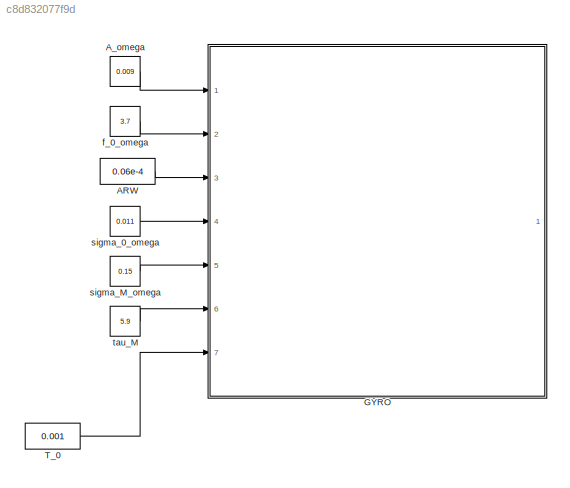
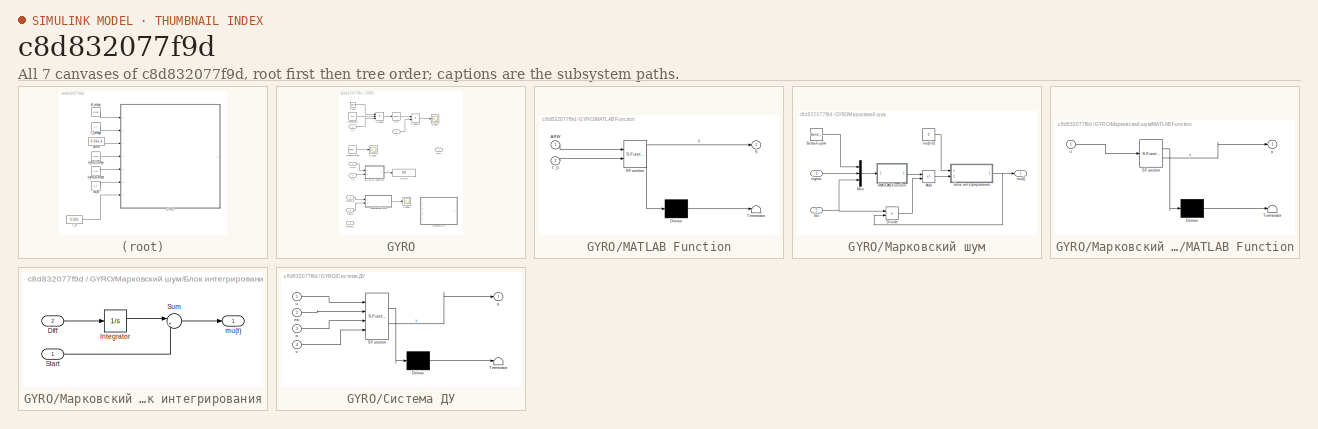
[diagram: thumbnail index - all 7 canvases of the model, root first then tree order]
MODEL slx_c8d832077f9d
KIND model
CONFIG AbsTol = auto
CONFIG EnableMultiTasking = off
CONFIG FixedStep = 0.001
CONFIG MaxStep = auto
CONFIG MinStep = auto
CONFIG RelTol = 1e-3
CONFIG SampleTimeConstraint = Unconstrained
CONFIG SolverName = FixedStepAuto
CONFIG StartTime = 0.0
CONFIG StopTime = 100.0
WORKSPACE source: mxarray member
WORKSPACE Sig: Simulink.Signal (value not decoded)
BLOCK [Constant] ARW
  Value = 0.06e-4
BLOCK [Constant] A_omega
  Value = 0.009
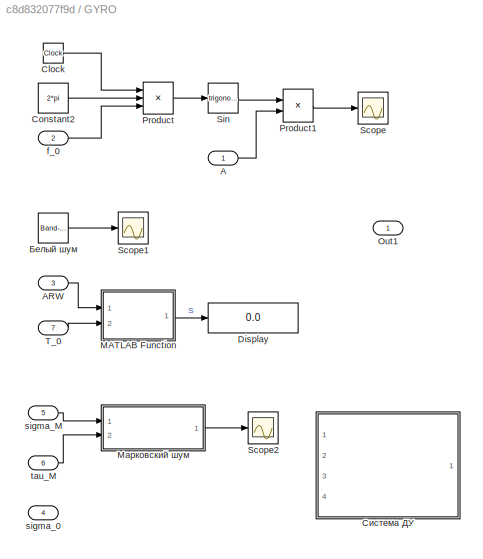
BLOCK [SubSystem] GYRO
  Ports = [7, 1]
  RequestExecContextInheritance = off
BLOCK [Inport] GYRO/A
BLOCK [Inport] GYRO/ARW
  Port = 3
BLOCK [Clock] GYRO/Clock
BLOCK [Constant] GYRO/Constant2
  Value = 2*pi
BLOCK [Display] GYRO/Display
  Decimation = 1
  Ports = [1]
BLOCK [SubSystem] GYRO/MATLAB Function
  ErrorFcn = Stateflow.Translate.translate
  PermitHierarchicalResolution = ExplicitOnly
  Ports = [2, 1]
  RequestExecContextInheritance = off
  SFBlockType = MATLAB Function
  TreatAsAtomicUnit = on
BLOCK [Demux] GYRO/MATLAB Function/ Demux 
  Outputs = 1
  Ports = [1, 1]
BLOCK [S-Function] GYRO/MATLAB Function/ SFunction 
  EnableBusSupport = on
  FunctionName = sf_sfun
  PortCounts = [2 2]
  Ports = [2, 2]
  SFcnIsStateOwnerBlock = off
  SFunctionDeploymentMode = off
  Tag = Stateflow S-Function 2
BLOCK [Terminator] GYRO/MATLAB Function/ Terminator 
BLOCK [Inport] GYRO/MATLAB Function/ARW
BLOCK [Outport] GYRO/MATLAB Function/S
BLOCK [Inport] GYRO/MATLAB Function/T_0
  Port = 2
BLOCK [Outport] GYRO/Out1
BLOCK [Product] GYRO/Product
  Inputs = 3
  Ports = [3, 1]
BLOCK [Product] GYRO/Product1
  Ports = [2, 1]
BLOCK [Scope] GYRO/Scope
  Floating = off
  NumInputPorts = 1
  Ports = [1]
  ScopeSpecificationString = Simulink.scopes.TimeScopeBlockCfg('CurrentConfiguration', extmgr.ConfigurationSet(extmgr.Configuration('Core','General UI',true),extmgr.Configuration('Core','Source UI',true),extmgr.Configuration('Sources','WiredSimulink',true,'DataLoggingVariableName','ScopeData1'),extmgr.Configuration('Visuals','Time Domain',true,'SerializedDisplays',{struct('MinYLimReal','-0.01125','MaxYLimReal','0.01125','YLab...<+1544ch>
BLOCK [Scope] GYRO/Scope1
  Floating = off
  NumInputPorts = 1
  Ports = [1]
  ScopeSpecificationString = Simulink.scopes.TimeScopeBlockCfg('CurrentConfiguration', extmgr.ConfigurationSet(extmgr.Configuration('Core','General UI',true),extmgr.Configuration('Core','Source UI',true),extmgr.Configuration('Sources','WiredSimulink',true),extmgr.Configuration('Visuals','Time Domain',true,'SerializedDisplays',{struct('MinYLimReal','-0.00009','MaxYLimReal','0.00009','YLabelReal','','MinYLimMag','0.00000','MaxY...<+1506ch>
BLOCK [Scope] GYRO/Scope2
  Floating = off
  NumInputPorts = 1
  Ports = [1]
  ScopeSpecificationString = Simulink.scopes.TimeScopeBlockCfg('CurrentConfiguration', extmgr.ConfigurationSet(extmgr.Configuration('Core','General UI',true),extmgr.Configuration('Core','Source UI',true),extmgr.Configuration('Sources','WiredSimulink',true,'DataLoggingVariableName','ScopeData2'),extmgr.Configuration('Visuals','Time Domain',true,'SerializedDisplays',{struct('MinYLimReal','-0.01336','MaxYLimReal','0.00978','YLab...<+1550ch>
BLOCK [Trigonometry] GYRO/Sin
  Ports = [1, 1]
BLOCK [Inport] GYRO/T_0
  Port = 7
BLOCK [Inport] GYRO/f_0
  Port = 2
BLOCK [Inport] GYRO/sigma_0
  Port = 4
BLOCK [Inport] GYRO/sigma_M
  Port = 5
BLOCK [Inport] GYRO/tau_M
  Port = 6
BLOCK [Reference] GYRO/Белый шум  REF=simulink/Sources/Band-Limited
White Noise
  Ports = [0, 1]
  SourceBlock = simulink/Sources/Band-Limited\nWhite Noise
  SourceProductBaseCode = SL
  SourceType = Band-Limited White Noise.
BLOCK [SubSystem] GYRO/Марковский шум
  Ports = [2, 1]
  RequestExecContextInheritance = off
BLOCK [Sum] GYRO/Марковский шум/Add
  IconShape = rectangular
  Inputs = +-
  Ports = [2, 1]
BLOCK [Product] GYRO/Марковский шум/Divide
  Inputs = /*
  Ports = [2, 1]
BLOCK [SubSystem] GYRO/Марковский шум/MATLAB Function
  ErrorFcn = Stateflow.Translate.translate
  PermitHierarchicalResolution = ExplicitOnly
  Ports = [1, 1]
  RequestExecContextInheritance = off
  SFBlockType = MATLAB Function
  TreatAsAtomicUnit = on
BLOCK [Demux] GYRO/Марковский шум/MATLAB Function/ Demux 
  Outputs = 1
  Ports = [1, 1]
BLOCK [S-Function] GYRO/Марковский шум/MATLAB Function/ SFunction 
  EnableBusSupport = on
  FunctionName = sf_sfun
  PortCounts = [1 2]
  Ports = [1, 2]
  SFcnIsStateOwnerBlock = off
  SFunctionDeploymentMode = off
  Tag = Stateflow S-Function 3
BLOCK [Terminator] GYRO/Марковский шум/MATLAB Function/ Terminator 
BLOCK [Inport] GYRO/Марковский шум/MATLAB Function/u
BLOCK [Outport] GYRO/Марковский шум/MATLAB Function/y
BLOCK [Mux] GYRO/Марковский шум/Mux
  DisplayOption = bar
  Inputs = 3
  Ports = [3, 1]
BLOCK [Outport] GYRO/Марковский шум/mu(t)
BLOCK [Constant] GYRO/Марковский шум/mu(t=0)
  Value = 0
BLOCK [Inport] GYRO/Марковский шум/sigma
BLOCK [Inport] GYRO/Марковский шум/tau
  Port = 2
BLOCK [Reference] GYRO/Марковский шум/Белый шум  REF=simulink/Sources/Band-Limited
White Noise
  Ports = [0, 1]
  SourceBlock = simulink/Sources/Band-Limited\nWhite Noise
  SourceProductBaseCode = SL
  SourceType = Band-Limited White Noise.
BLOCK [SubSystem] GYRO/Марковский шум/Блок интегрирования
  Ports = [2, 1]
  RequestExecContextInheritance = off
BLOCK [Inport] GYRO/Марковский шум/Блок интегрирования/Diff
  Port = 2
BLOCK [Integrator] GYRO/Марковский шум/Блок интегрирования/Integrator
  Ports = [1, 1]
BLOCK [Inport] GYRO/Марковский шум/Блок интегрирования/Start
BLOCK [Sum] GYRO/Марковский шум/Блок интегрирования/Sum
  Inputs = |++
  Ports = [2, 1]
BLOCK [Outport] GYRO/Марковский шум/Блок интегрирования/mu(t)
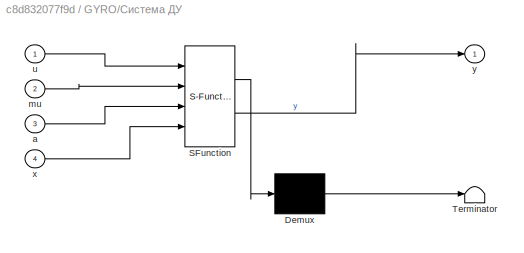
BLOCK [SubSystem] GYRO/Система ДУ
  Commented = on
  ErrorFcn = Stateflow.Translate.translate
  PermitHierarchicalResolution = ExplicitOnly
  Ports = [4, 1]
  RequestExecContextInheritance = off
  SFBlockType = MATLAB Function
  TreatAsAtomicUnit = on
BLOCK [Demux] GYRO/Система ДУ/ Demux 
  Outputs = 1
  Ports = [1, 1]
BLOCK [S-Function] GYRO/Система ДУ/ SFunction 
  EnableBusSupport = on
  FunctionName = sf_sfun
  PortCounts = [4 2]
  Ports = [4, 2]
  SFcnIsStateOwnerBlock = off
  SFunctionDeploymentMode = off
  Tag = Stateflow S-Function 1
BLOCK [Terminator] GYRO/Система ДУ/ Terminator 
BLOCK [Inport] GYRO/Система ДУ/a
  Port = 3
BLOCK [Inport] GYRO/Система ДУ/mu
  Port = 2
BLOCK [Inport] GYRO/Система ДУ/u
BLOCK [Inport] GYRO/Система ДУ/x
  Port = 4
BLOCK [Outport] GYRO/Система ДУ/y
BLOCK [Constant] T_0
  Value = 0.001
BLOCK [Constant] f_0_omega
  Value = 3.7
BLOCK [Constant] sigma_0_omega
  Value = 0.011
BLOCK [Constant] sigma_M_omega
  Value = 0.15
BLOCK [Constant] tau_M
  Value = 5.9
LINE ARW:1 -> GYRO:3
LINE A_omega:1 -> GYRO:1
LINE GYRO/A:1 -> GYRO/Product1:2
LINE GYRO/ARW:1 -> GYRO/MATLAB Function:1
LINE GYRO/Clock:1 -> GYRO/Product:1
LINE GYRO/Constant2:1 -> GYRO/Product:2
LINE GYRO/MATLAB Function:1 -> GYRO/Display:1
LINE GYRO/Product1:1 -> GYRO/Scope:1
LINE GYRO/Product:1 -> GYRO/Sin:1
LINE GYRO/Sin:1 -> GYRO/Product1:1
LINE GYRO/T_0:1 -> GYRO/MATLAB Function:2
LINE GYRO/f_0:1 -> GYRO/Product:3
LINE GYRO/sigma_M:1 -> GYRO/Марковский шум:1
LINE GYRO/tau_M:1 -> GYRO/Марковский шум:2
LINE GYRO/Белый шум:1 -> GYRO/Scope1:1
LINE GYRO/Марковский шум/Add:1 -> GYRO/Марковский шум/Блок интегрирования:2
LINE GYRO/Марковский шум/Divide:1 -> GYRO/Марковский шум/Add:2
LINE GYRO/Марковский шум/MATLAB Function:1 -> GYRO/Марковский шум/Add:1
LINE GYRO/Марковский шум/Mux:1 -> GYRO/Марковский шум/MATLAB Function:1
LINE GYRO/Марковский шум/mu(t=0):1 -> GYRO/Марковский шум/Блок интегрирования:1
LINE GYRO/Марковский шум/sigma:1 -> GYRO/Марковский шум/Mux:2
NET GYRO/Марковский шум/tau:1 -> GYRO/Марковский шум/Divide:1, GYRO/Марковский шум/Mux:3
LINE GYRO/Марковский шум/Белый шум:1 -> GYRO/Марковский шум/Mux:1
LINE GYRO/Марковский шум/Блок интегрирования/Diff:1 -> GYRO/Марковский шум/Блок интегрирования/Integrator:1
LINE GYRO/Марковский шум/Блок интегрирования/Integrator:1 -> GYRO/Марковский шум/Блок интегрирования/Sum:1
LINE GYRO/Марковский шум/Блок интегрирования/Start:1 -> GYRO/Марковский шум/Блок интегрирования/Sum:2
LINE GYRO/Марковский шум/Блок интегрирования/Sum:1 -> GYRO/Марковский шум/Блок интегрирования/mu(t):1
NET GYRO/Марковский шум/Блок интегрирования:1 -> GYRO/Марковский шум/Divide:2, GYRO/Марковский шум/mu(t):1
LINE GYRO/Марковский шум:1 -> GYRO/Scope2:1
LINE T_0:1 -> GYRO:7
LINE f_0_omega:1 -> GYRO:2
LINE sigma_0_omega:1 -> GYRO:4
LINE sigma_M_omega:1 -> GYRO:5
LINE tau_M:1 -> GYRO:6
note: NET lines group one-source signal fan-out (src -> all destinations, sorted); 1:1 wires keep LINE
CHART GYRO/Система ДУ states=1 transitions=1
  STATE_LABEL 'eML_blk_kernel()'
  STATE_LABEL 'SCRIPT:\nfunction y = fcn(u,mu,a,x)\n    dx_1=x(2);\n    dx_2=x(3);\n    dx_3=u+mu-a(1)*x(1)-a(2)*x(2)-a(3)*x(3);\ny = [dx_1, \n    dx_2, \n    dx_3];\n'
CHART GYRO/MATLAB Function states=1 transitions=1
  STATE_LABEL 'eML_blk_kernel()'
  STATE_LABEL 'SCRIPT:\nfunction S = fcn(ARW,T_0)\n    sigma=ARW/sqrt(T_0);\nS = sigma^2*T_0;\n'
CHART GYRO/Марковский шум/MATLAB Function states=1 transitions=1
  STATE_LABEL 'eML_blk_kernel()'
  STATE_LABEL 'SCRIPT:\nfunction y = fcn(u)\n    xi=u(1);\n    sigma=u(2);\n    tau=u(3);\n    alpha=1/tau;\n    k_f=sigma*sqrt(2*alpha);\ny = k_f*xi;\n'
CHART  states=0 transitions=0
CHART  states=0 transitions=0
CHART  states=0 transitions=0
